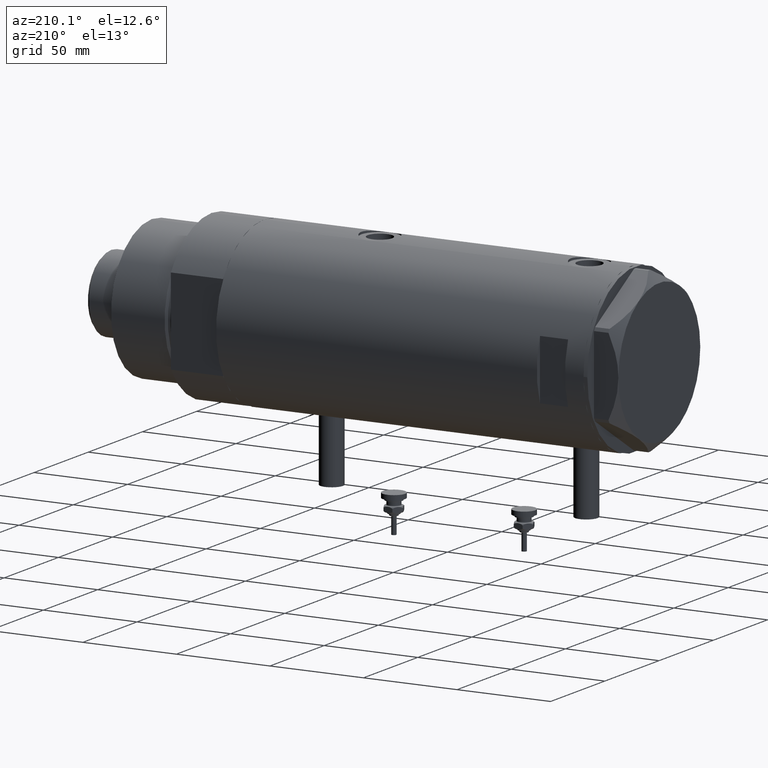
[diagram: clean part render]
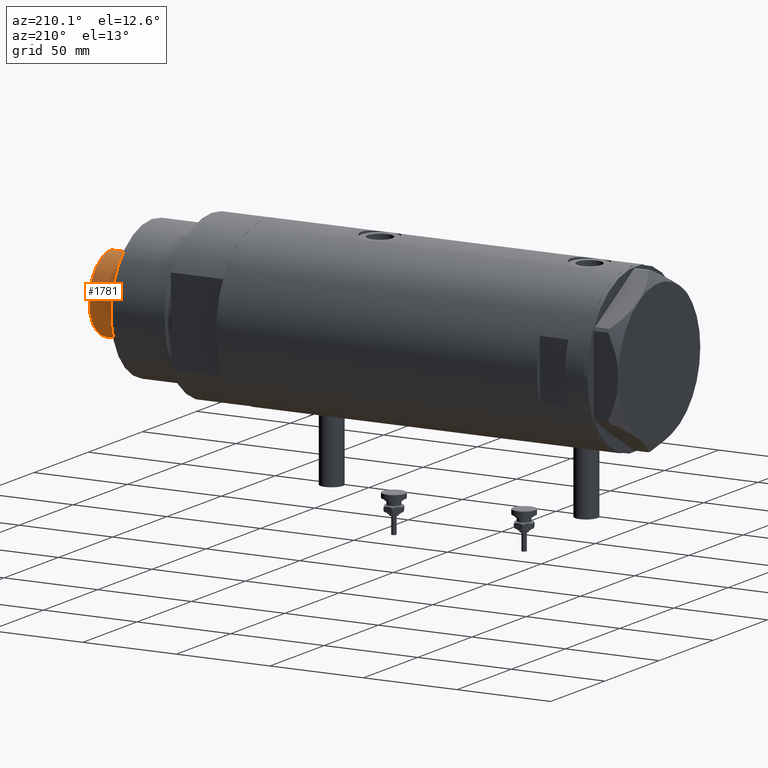
[diagram: same view with one face highlighted and labeled with its STEP entity id]
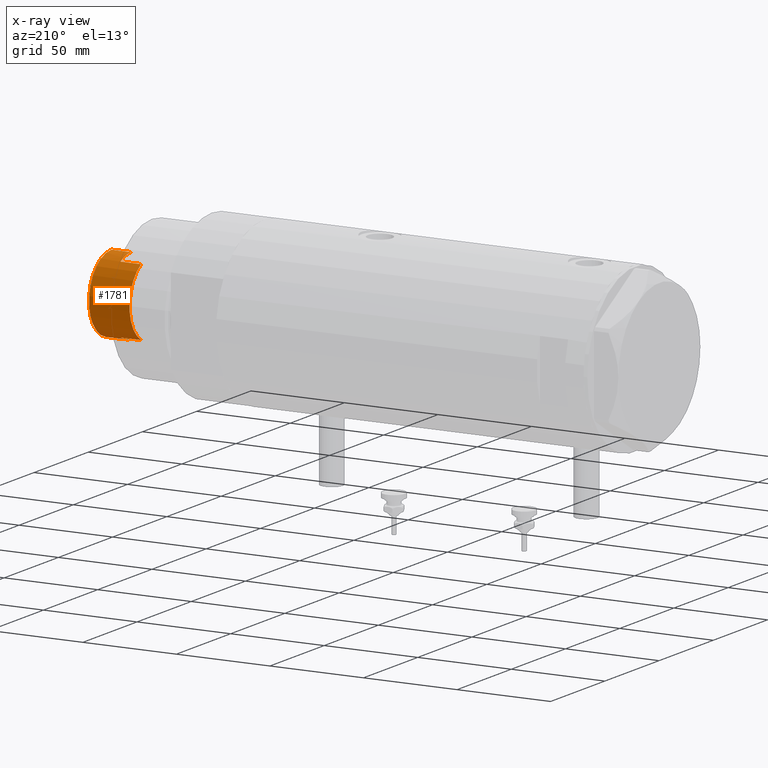
[diagram: x-ray of the same camera — body ghosted, the highlighted face saturated]
A machine part, auxiliary view. The second image highlights one B-rep face of the part: STEP entity #1781.
The next image is the same camera in x-ray: the body ghosted, the highlighted face saturated — about 0% of this face is hidden behind the body in this view.
In plain terms, the highlighted cylindrical surface (partial cylindrical patch) has radius 20.5 mm, axis along (-1, -0, 0).
Its self-contained STEP definition (entity closure, byte-faithful):
#20 = AXIS2_PLACEMENT_3D ( 'NONE', #1292, #3634, #3259 ) ;
#62 = CIRCLE ( 'NONE', #3249, 20.50000000000000000 ) ;
#219 = VERTEX_POINT ( 'NONE', #5565 ) ;
#376 = CARTESIAN_POINT ( 'NONE',  ( 17.97852886083842705, 9.849999999999997868, 241.3000000000000114 ) ) ;
#422 = DIRECTION ( 'NONE',  ( 0.000000000000000000, 0.000000000000000000, 1.000000000000000000 ) ) ;
#450 = AXIS2_PLACEMENT_3D ( 'NONE', #5444, #422, #865 ) ;
#703 = DIRECTION ( 'NONE',  ( -0.000000000000000000, -0.000000000000000000, -1.000000000000000000 ) ) ;
#737 = AXIS2_PLACEMENT_3D ( 'NONE', #5148, #971, #3820 ) ;
#752 = CARTESIAN_POINT ( 'NONE',  ( 17.97852886083842705, 9.849999999999997868, 241.3000000000000114 ) ) ;
#865 = DIRECTION ( 'NONE',  ( 1.000000000000000000, 0.000000000000000000, 0.000000000000000000 ) ) ;
#892 = CYLINDRICAL_SURFACE ( 'NONE', #1310, 20.50000000000000355 ) ;
#941 = EDGE_CURVE ( 'NONE', #219, #3428, #5578, .T. ) ;
#945 = ORIENTED_EDGE ( 'NONE', *, *, #4421, .F. ) ;
#971 = DIRECTION ( 'NONE',  ( 0.000000000000000000, 0.000000000000000000, -1.000000000000000000 ) ) ;
#1033 = VECTOR ( 'NONE', #4050, 1000.000000000000000 ) ;
#1038 = ORIENTED_EDGE ( 'NONE', *, *, #3830, .F. ) ;
#1112 = CARTESIAN_POINT ( 'NONE',  ( -20.50000000000000355, 0.000000000000000000, 251.9000000000001194 ) ) ;
#1292 = CARTESIAN_POINT ( 'NONE',  ( 0.000000000000000000, 0.000000000000000000, 230.3000000000000114 ) ) ;
#1293 = VERTEX_POINT ( 'NONE', #3494 ) ;
#1310 = AXIS2_PLACEMENT_3D ( 'NONE', #1676, #4487, #1848 ) ;
#1400 = DIRECTION ( 'NONE',  ( -0.000000000000000000, -0.000000000000000000, -1.000000000000000000 ) ) ;
#1481 = CARTESIAN_POINT ( 'NONE',  ( -17.97852886083842705, 9.849999999999997868, 241.3000000000000114 ) ) ;
#1627 = LINE ( 'NONE', #376, #5821 ) ;
#1674 = VERTEX_POINT ( 'NONE', #752 ) ;
#1676 = CARTESIAN_POINT ( 'NONE',  ( 0.000000000000000000, 0.000000000000000000, 241.3000000000000114 ) ) ;
#1781 = ADVANCED_FACE ( 'NONE', ( #2351 ), #892, .T. ) ;
#1796 = ORIENTED_EDGE ( 'NONE', *, *, #941, .T. ) ;
#1848 = DIRECTION ( 'NONE',  ( -1.000000000000000000, 0.000000000000000000, 0.000000000000000000 ) ) ;
#1925 = EDGE_CURVE ( 'NONE', #4277, #4670, #62, .T. ) ;
#2206 = EDGE_CURVE ( 'NONE', #3428, #1674, #5120, .T. ) ;
#2287 = CIRCLE ( 'NONE', #737, 20.50000000000000355 ) ;
#2351 = FACE_OUTER_BOUND ( 'NONE', #4723, .T. ) ;
#2797 = CARTESIAN_POINT ( 'NONE',  ( 20.50000000000000000, 2.510525938252074481E-15, 241.3000000000000114 ) ) ;
#2847 = EDGE_CURVE ( 'NONE', #3186, #219, #2287, .T. ) ;
#3158 = LINE ( 'NONE', #5030, #1033 ) ;
#3171 = VECTOR ( 'NONE', #1400, 1000.000000000000000 ) ;
#3186 = VERTEX_POINT ( 'NONE', #1112 ) ;
#3249 = AXIS2_PLACEMENT_3D ( 'NONE', #4732, #4212, #3302 ) ;
#3259 = DIRECTION ( 'NONE',  ( 1.000000000000000000, 0.000000000000000000, 0.000000000000000000 ) ) ;
#3302 = DIRECTION ( 'NONE',  ( 1.000000000000000000, 0.000000000000000000, 0.000000000000000000 ) ) ;
#3327 = ORIENTED_EDGE ( 'NONE', *, *, #5186, .T. ) ;
#3373 = CIRCLE ( 'NONE', #20, 20.49999999999998934 ) ;
#3428 = VERTEX_POINT ( 'NONE', #2797 ) ;
#3494 = CARTESIAN_POINT ( 'NONE',  ( 17.97852886083842705, 9.849999999999997868, 230.3000000000000114 ) ) ;
#3586 = DIRECTION ( 'NONE',  ( -0.000000000000000000, -0.000000000000000000, -1.000000000000000000 ) ) ;
#3634 = DIRECTION ( 'NONE',  ( 0.000000000000000000, 0.000000000000000000, 1.000000000000000000 ) ) ;
#3820 = DIRECTION ( 'NONE',  ( 1.000000000000000000, 0.000000000000000000, 0.000000000000000000 ) ) ;
#3830 = EDGE_CURVE ( 'NONE', #4277, #6005, #3158, .T. ) ;
#4050 = DIRECTION ( 'NONE',  ( -0.000000000000000000, -0.000000000000000000, -1.000000000000000000 ) ) ;
#4164 = VECTOR ( 'NONE', #3586, 1000.000000000000000 ) ;
#4172 = CARTESIAN_POINT ( 'NONE',  ( -20.50000000000000000, 0.000000000000000000, 241.3000000000000114 ) ) ;
#4205 = CARTESIAN_POINT ( 'NONE',  ( -17.97852886083842705, 9.849999999999965894, 230.3000000000000114 ) ) ;
#4212 = DIRECTION ( 'NONE',  ( 0.000000000000000000, 0.000000000000000000, 1.000000000000000000 ) ) ;
#4277 = VERTEX_POINT ( 'NONE', #1481 ) ;
#4395 = LINE ( 'NONE', #5810, #4164 ) ;
#4421 = EDGE_CURVE ( 'NONE', #3186, #4670, #4395, .T. ) ;
#4487 = DIRECTION ( 'NONE',  ( -0.000000000000000000, -0.000000000000000000, -1.000000000000000000 ) ) ;
#4670 = VERTEX_POINT ( 'NONE', #4172 ) ;
#4723 = EDGE_LOOP ( 'NONE', ( #4802, #1796, #4890, #3327, #4864, #1038, #5955, #945 ) ) ;
#4732 = CARTESIAN_POINT ( 'NONE',  ( 0.000000000000000000, 0.000000000000000000, 241.3000000000000114 ) ) ;
#4802 = ORIENTED_EDGE ( 'NONE', *, *, #2847, .T. ) ;
#4864 = ORIENTED_EDGE ( 'NONE', *, *, #4870, .T. ) ;
#4870 = EDGE_CURVE ( 'NONE', #1293, #6005, #3373, .T. ) ;
#4890 = ORIENTED_EDGE ( 'NONE', *, *, #2206, .T. ) ;
#5030 = CARTESIAN_POINT ( 'NONE',  ( -17.97852886083842705, 9.849999999999997868, 241.3000000000000114 ) ) ;
#5120 = CIRCLE ( 'NONE', #450, 20.50000000000000000 ) ;
#5148 = CARTESIAN_POINT ( 'NONE',  ( 0.000000000000000000, 0.000000000000000000, 251.9000000000001194 ) ) ;
#5186 = EDGE_CURVE ( 'NONE', #1674, #1293, #1627, .T. ) ;
#5444 = CARTESIAN_POINT ( 'NONE',  ( 0.000000000000000000, 0.000000000000000000, 241.3000000000000114 ) ) ;
#5497 = CARTESIAN_POINT ( 'NONE',  ( 20.50000000000000355, 2.510525938252074481E-15, 241.3000000000000114 ) ) ;
#5565 = CARTESIAN_POINT ( 'NONE',  ( 20.50000000000000355, 2.510525938252074481E-15, 251.9000000000001194 ) ) ;
#5578 = LINE ( 'NONE', #5497, #3171 ) ;
#5810 = CARTESIAN_POINT ( 'NONE',  ( -20.50000000000000355, 0.000000000000000000, 241.3000000000000114 ) ) ;
#5821 = VECTOR ( 'NONE', #703, 1000.000000000000000 ) ;
#5955 = ORIENTED_EDGE ( 'NONE', *, *, #1925, .T. ) ;
#6005 = VERTEX_POINT ( 'NONE', #4205 ) ;